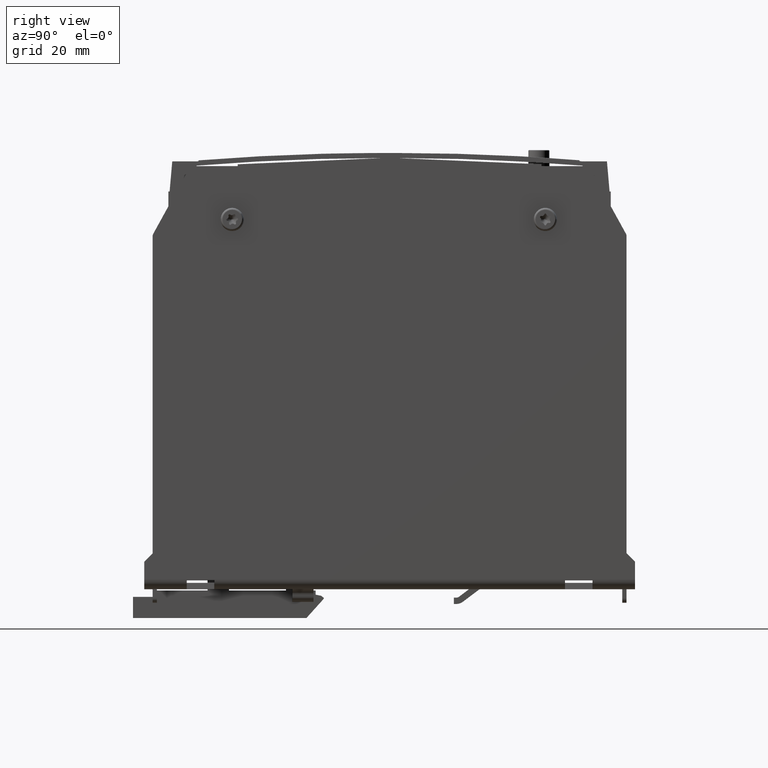
[diagram: clean part render]
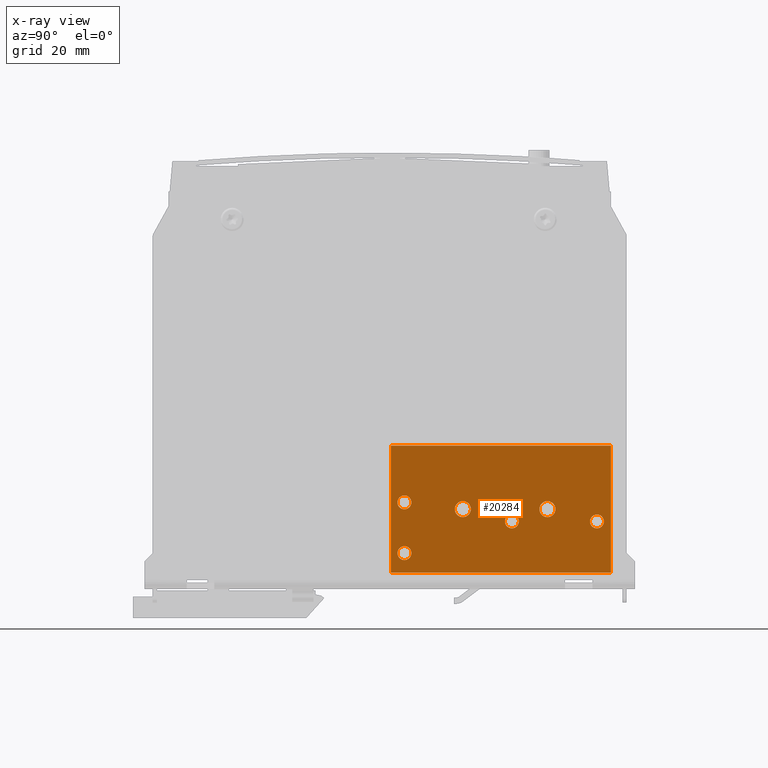
[diagram: x-ray — body ghosted, one internal face saturated and labeled with its STEP entity id]
A machine part, right view, then the same camera in x-ray: the body is ghosted and one INTERNAL B-rep face — a face not visible from any outside direction — is saturated and labeled: STEP entity #20284.
In plain terms, the highlighted planar face has unit normal (1, 0, 0).
Its self-contained STEP definition (entity closure, byte-faithful):
#20175=CARTESIAN_POINT('',(-0.787401574803145,0.137795275590563,0.399606299212604));
#20176=VERTEX_POINT('',#20175);
#20177=CARTESIAN_POINT('',(-0.787401574803145,0.137795275590563,0.334645669291345));
#20178=DIRECTION('',(1.0,0.0,0.0));
#20179=DIRECTION('',(0.0,0.0,-1.0));
#20180=AXIS2_PLACEMENT_3D('',#20177,#20178,#20179);
#20181=CIRCLE('',#20180,0.06496062992126);
#20182=EDGE_CURVE('',#20176,#20176,#20181,.T.);
#20187=CARTESIAN_POINT('',(-0.787401574803145,1.035433070866154,0.744094488188982));
#20188=DIRECTION('',(1.0,0.0,0.0));
#20189=DIRECTION('',(0.0,0.0,1.0));
#20190=AXIS2_PLACEMENT_3D('',#20187,#20188,#20189);
#20191=PLANE('',#20190);
#20192=CARTESIAN_POINT('',(-0.787401574803145,2.059055118110249,0.15354330708662));
#20193=VERTEX_POINT('',#20192);
#20194=CARTESIAN_POINT('',(-0.787401574803145,0.011811023622059,0.15354330708662));
#20195=VERTEX_POINT('',#20194);
#20196=CARTESIAN_POINT('',(-0.787401574803145,2.059055118110249,0.15354330708662));
#20197=DIRECTION('',(0.0,-1.0,0.0));
#20198=VECTOR('',#20197,2.047244094488189);
#20199=LINE('',#20196,#20198);
#20200=EDGE_CURVE('',#20193,#20195,#20199,.T.);
#20201=ORIENTED_EDGE('',*,*,#20200,.F.);
#20202=CARTESIAN_POINT('',(-0.787401574803145,2.059055118110249,1.334645669291345));
#20203=VERTEX_POINT('',#20202);
#20204=CARTESIAN_POINT('',(-0.787401574803145,2.059055118110249,1.334645669291345));
#20205=DIRECTION('',(0.0,0.0,-1.0));
#20206=VECTOR('',#20205,1.181102362204725);
#20207=LINE('',#20204,#20206);
#20208=EDGE_CURVE('',#20203,#20193,#20207,.T.);
#20209=ORIENTED_EDGE('',*,*,#20208,.F.);
#20210=CARTESIAN_POINT('',(-0.787401574803145,0.011811023622059,1.334645669291345));
#20211=VERTEX_POINT('',#20210);
#20212=CARTESIAN_POINT('',(-0.787401574803145,0.011811023622059,1.334645669291345));
#20213=DIRECTION('',(0.0,1.0,0.0));
#20214=VECTOR('',#20213,2.047244094488189);
#20215=LINE('',#20212,#20214);
#20216=EDGE_CURVE('',#20211,#20203,#20215,.T.);
#20217=ORIENTED_EDGE('',*,*,#20216,.F.);
#20218=CARTESIAN_POINT('',(-0.787401574803145,0.011811023622059,0.15354330708662));
#20219=DIRECTION('',(0.0,0.0,1.0));
#20220=VECTOR('',#20219,1.181102362204725);
#20221=LINE('',#20218,#20220);
#20222=EDGE_CURVE('',#20195,#20211,#20221,.T.);
#20223=ORIENTED_EDGE('',*,*,#20222,.F.);
#20224=EDGE_LOOP('',(#20201,#20209,#20217,#20223));
#20225=FACE_OUTER_BOUND('',#20224,.T.);
#20226=CARTESIAN_POINT('',(-0.787401574803145,0.137795275590563,0.872047244094494));
#20227=VERTEX_POINT('',#20226);
#20228=CARTESIAN_POINT('',(-0.787401574803145,0.137795275590563,0.807086614173234));
#20229=DIRECTION('',(1.0,0.0,0.0));
#20230=DIRECTION('',(0.0,0.0,-1.0));
#20231=AXIS2_PLACEMENT_3D('',#20228,#20229,#20230);
#20232=CIRCLE('',#20231,0.06496062992126);
#20233=EDGE_CURVE('',#20227,#20227,#20232,.T.);
#20234=ORIENTED_EDGE('',*,*,#20233,.F.);
#20235=EDGE_LOOP('',(#20234));
#20236=FACE_BOUND('',#20235,.T.);
#20237=CARTESIAN_POINT('',(-0.787401574803145,1.468503937007886,0.818897637795282));
#20238=VERTEX_POINT('',#20237);
#20239=CARTESIAN_POINT('',(-0.787401574803145,1.468503937007886,0.744094488188982));
#20240=DIRECTION('',(1.0,0.0,0.0));
#20241=DIRECTION('',(0.0,0.0,-1.0));
#20242=AXIS2_PLACEMENT_3D('',#20239,#20240,#20241);
#20243=CIRCLE('',#20242,0.074803149606299);
#20244=EDGE_CURVE('',#20238,#20238,#20243,.T.);
#20245=ORIENTED_EDGE('',*,*,#20244,.F.);
#20246=EDGE_LOOP('',(#20245));
#20247=FACE_BOUND('',#20246,.T.);
#20248=CARTESIAN_POINT('',(-0.787401574803145,1.929133858267729,0.694881889763786));
#20249=VERTEX_POINT('',#20248);
#20250=CARTESIAN_POINT('',(-0.787401574803145,1.929133858267729,0.629921259842526));
#20251=DIRECTION('',(1.0,0.0,0.0));
#20252=DIRECTION('',(0.0,0.0,-1.0));
#20253=AXIS2_PLACEMENT_3D('',#20250,#20251,#20252);
#20254=CIRCLE('',#20253,0.06496062992126);
#20255=EDGE_CURVE('',#20249,#20249,#20254,.T.);
#20256=ORIENTED_EDGE('',*,*,#20255,.F.);
#20257=EDGE_LOOP('',(#20256));
#20258=FACE_BOUND('',#20257,.T.);
#20259=CARTESIAN_POINT('',(-0.787401574803145,1.137795275590563,0.694881889763786));
#20260=VERTEX_POINT('',#20259);
#20261=CARTESIAN_POINT('',(-0.787401574803145,1.137795275590563,0.629921259842526));
#20262=DIRECTION('',(1.0,0.0,0.0));
#20263=DIRECTION('',(0.0,0.0,-1.0));
#20264=AXIS2_PLACEMENT_3D('',#20261,#20262,#20263);
#20265=CIRCLE('',#20264,0.06496062992126);
#20266=EDGE_CURVE('',#20260,#20260,#20265,.T.);
#20267=ORIENTED_EDGE('',*,*,#20266,.F.);
#20268=EDGE_LOOP('',(#20267));
#20269=FACE_BOUND('',#20268,.T.);
#20270=CARTESIAN_POINT('',(-0.787401574803145,0.681102362204737,0.818897637795282));
#20271=VERTEX_POINT('',#20270);
#20272=CARTESIAN_POINT('',(-0.787401574803145,0.681102362204737,0.744094488188982));
#20273=DIRECTION('',(1.0,0.0,0.0));
#20274=DIRECTION('',(0.0,0.0,-1.0));
#20275=AXIS2_PLACEMENT_3D('',#20272,#20273,#20274);
#20276=CIRCLE('',#20275,0.074803149606299);
#20277=EDGE_CURVE('',#20271,#20271,#20276,.T.);
#20278=ORIENTED_EDGE('',*,*,#20277,.F.);
#20279=EDGE_LOOP('',(#20278));
#20280=FACE_BOUND('',#20279,.T.);
#20281=ORIENTED_EDGE('',*,*,#20182,.F.);
#20282=EDGE_LOOP('',(#20281));
#20283=FACE_BOUND('',#20282,.T.);
#20284=ADVANCED_FACE('',(#20225,#20236,#20247,#20258,#20269,#20280,#20283),#20191,.T.);